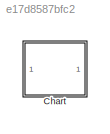
MODEL slx_e17d8587bfc2
KIND model
CONFIG AbsTol = auto
CONFIG EnableMultiTasking = off
CONFIG FixedStep = auto
CONFIG MaxStep = auto
CONFIG MinStep = auto
CONFIG RelTol = 1e-3
CONFIG SampleTimeConstraint = Unconstrained
CONFIG Solver = VariableStepAuto
CONFIG SolverName = VariableStepAuto
CONFIG StartTime = 0.0
CONFIG StopTime = 0.1
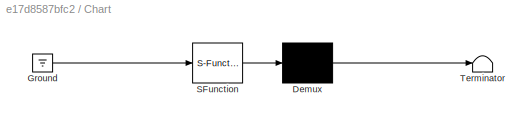
BLOCK [SubSystem] Chart
  ErrorFcn = Stateflow.Translate.translate
  PermitHierarchicalResolution = ExplicitOnly
  Ports = []
  RequestExecContextInheritance = off
  SFBlockType = Chart
  TreatAsAtomicUnit = on
BLOCK [Demux] Chart/ Demux 
  Outputs = 1
  Ports = [1, 1]
BLOCK [Ground] Chart/ Ground 
BLOCK [S-Function] Chart/ SFunction 
  EnableBusSupport = on
  FunctionName = sf_sfun
  PortCounts = [1 1]
  Ports = [1, 1]
  SFcnIsStateOwnerBlock = off
  SFunctionDeploymentMode = off
  Tag = Stateflow S-Function 3
BLOCK [Terminator] Chart/ Terminator 
CHART Chart states=11 transitions=10
  STATE_LABEL 'AM'
  STATE_LABEL 'A'
  STATE_LABEL 'A1\nen: f("en_A1")\nex: f("ex_A1")'
  STATE_LABEL 'A2\nen: f("en_A2")\nex: f("ex_A2")'
  STATE_LABEL '[data==1]{B.E_one}'
  STATE_LABEL 'E_two'
  STATE_LABEL 'B'
  STATE_LABEL 'B1\nen: f("en_B1")\nex: f("ex_B1")'
  STATE_LABEL 'B2\nen: f("en_B2")\nex: f("ex_B2")'
  STATE_LABEL 'E_one{C.E_one}'
  STATE_LABEL 'E_two{A.E_two}'
  STATE_LABEL 'C'
  STATE_LABEL 'C1\nen: f("en_C1")\nex: f("ex_C1")'
  STATE_LABEL 'C2\nen: f("en_C2")\nex: f("ex_C2")'
  STATE_LABEL 'E_one'
  STATE_LABEL '[data==1]{B.E_two}'
  STATE_LABEL 'A'
  STATE_LABEL 'A1\nen: f("en_A1")\nex: f("ex_A1")'
  STATE_LABEL 'A2\nen: f("en_A2")\nex: f("ex_A2")'
  STATE_LABEL '[data==1]{B.E_one}'
  STATE_LABEL 'E_two'
  STATE_LABEL 'A1\nen: f("en_A1")\nex: f("ex_A1")'
  STATE_LABEL 'A2\nen: f("en_A2")\nex: f("ex_A2")'
  STATE_LABEL 'B'
  STATE_LABEL 'B1\nen: f("en_B1")\nex: f("ex_B1")'
  STATE_LABEL 'B2\nen: f("en_B2")\nex: f("ex_B2")'
  STATE_LABEL 'E_one{C.E_one}'
  STATE_LABEL 'E_two{A.E_two}'
  STATE_LABEL 'B1\nen: f("en_B1")\nex: f("ex_B1")'
  STATE_LABEL 'B2\nen: f("en_B2")\nex: f("ex_B2")'
  STATE_LABEL 'C'
  STATE_LABEL 'C1\nen: f("en_C1")\nex: f("ex_C1")'
  STATE_LABEL 'C2\nen: f("en_C2")\nex: f("ex_C2")'
  STATE_LABEL 'E_one'
  STATE_LABEL '[data==1]{B.E_two}'
  STATE_LABEL 'C1\nen: f("en_C1")\nex: f("ex_C1")'
  STATE_LABEL 'C2\nen: f("en_C2")\nex: f("ex_C2")'
  STATE_LABEL 'f(s)'
  STATE_LABEL 'SCRIPT:\nfunction f(s)\n  fprintf(s+"\\n");'
CHART  states=0 transitions=0
